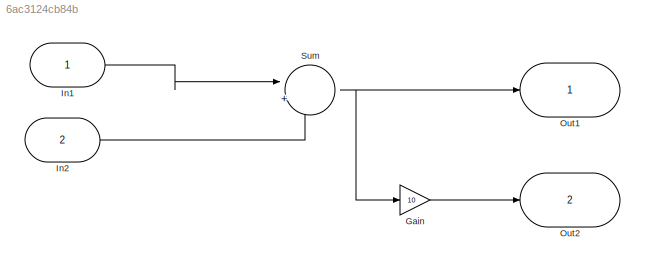
MODEL slx_6ac3124cb84b
KIND model
CONFIG AbsTol = auto
CONFIG EnableMultiTasking = off
CONFIG FixedStep = auto
CONFIG MaxStep = auto
CONFIG MinStep = auto
CONFIG RelTol = 1e-3
CONFIG SampleTimeConstraint = Unconstrained
CONFIG SolverName = VariableStepAuto
CONFIG StartTime = 0.0
CONFIG StopTime = 10.0
BLOCK [Gain] Gain
  Gain = 10
BLOCK [Inport] In1
  OutDataTypeStr = int32
BLOCK [Inport] In2
  OutDataTypeStr = int32
  Port = 2
BLOCK [Outport] Out1
  OutDataTypeStr = int32
BLOCK [Outport] Out2
  OutDataTypeStr = int32
  Port = 2
BLOCK [Sum] Sum
  Inputs = |++
  Ports = [2, 1]
LINE Gain:1 -> Out2:1
LINE In1:1 -> Sum:1
LINE In2:1 -> Sum:2
NET Sum:1 -> Gain:1, Out1:1
note: NET lines group one-source signal fan-out (src -> all destinations, sorted); 1:1 wires keep LINE
